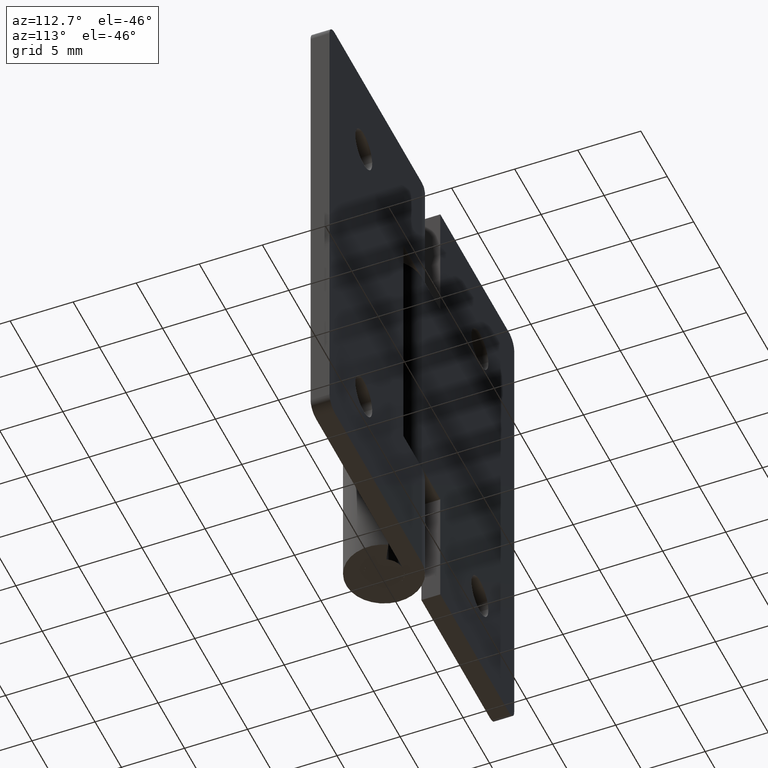
[diagram: clean part render]
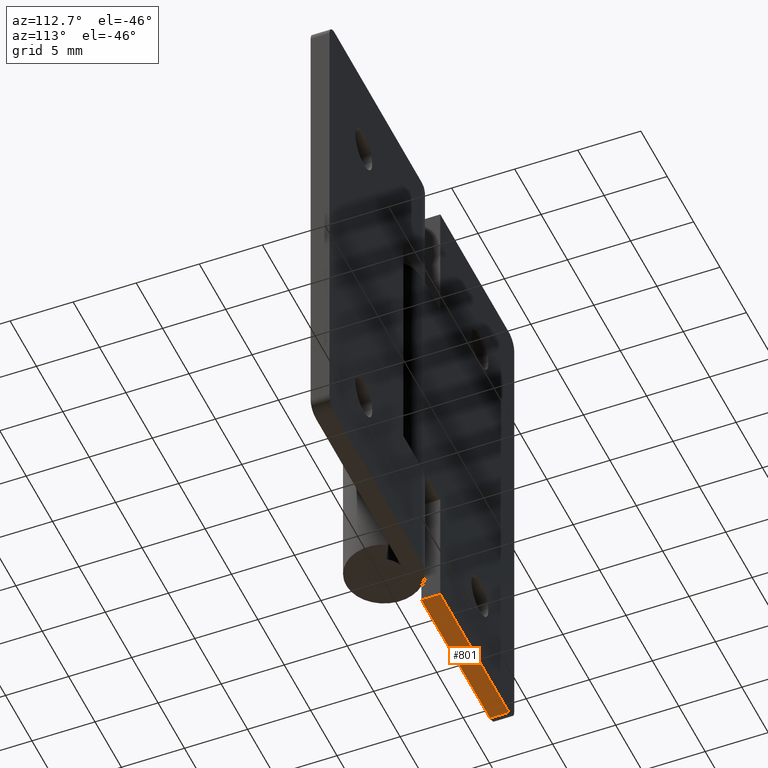
[diagram: same view with one face highlighted and labeled with its STEP entity id]
A machine part, auxiliary view. The second image highlights one B-rep face of the part: STEP entity #801.
In plain terms, the highlighted face is a freeform B-spline surface patch.
Its self-contained STEP definition (entity closure, byte-faithful):
#485=CARTESIAN_POINT('',(-16.500000000000000,1.500000000000000,0.0));
#486=VERTEX_POINT('',#485);
#507=CARTESIAN_POINT('',(-16.500000000000000,3.0,0.0));
#508=VERTEX_POINT('',#507);
#522=CARTESIAN_POINT('',(-16.500000000000000,1.500000000000000,0.0));
#523=CARTESIAN_POINT('',(-16.500000000000000,3.0,0.0));
#524=QUASI_UNIFORM_CURVE('',1,(#522,#523),.UNSPECIFIED.,.F.,.U.);
#525=EDGE_CURVE('',#486,#508,#524,.T.);
#613=CARTESIAN_POINT('',(-3.500000000000000,1.500000000000000,0.0));
#614=VERTEX_POINT('',#613);
#615=CARTESIAN_POINT('',(-3.500000000000000,3.0,0.0));
#616=VERTEX_POINT('',#615);
#617=CARTESIAN_POINT('',(-3.500000000000000,1.500000000000000,0.0));
#618=CARTESIAN_POINT('',(-3.500000000000000,3.0,0.0));
#619=QUASI_UNIFORM_CURVE('',1,(#617,#618),.UNSPECIFIED.,.F.,.U.);
#620=EDGE_CURVE('',#614,#616,#619,.T.);
#782=CARTESIAN_POINT('',(-17.149349974803481,1.425075002907291,0.0));
#783=CARTESIAN_POINT('',(-2.850649676509351,1.425075002907291,0.0));
#784=CARTESIAN_POINT('',(-17.149349974803481,3.074925037325845,0.0));
#785=CARTESIAN_POINT('',(-2.850649676509351,3.074925037325845,0.0));
#786=B_SPLINE_SURFACE_WITH_KNOTS('',1,1,((#782,#784),(#783,#785)),.UNSPECIFIED.,.F.,.F.,.U.,(2,2),(2,2),(0.0,14.298700298294129),(0.041708334948495,0.958291687403247),.UNSPECIFIED.);
#787=CARTESIAN_POINT('',(-3.500000000000000,1.500000000000000,0.0));
#788=CARTESIAN_POINT('',(-16.500000000000000,1.500000000000000,0.0));
#789=QUASI_UNIFORM_CURVE('',1,(#787,#788),.UNSPECIFIED.,.F.,.U.);
#790=EDGE_CURVE('',#614,#486,#789,.T.);
#791=ORIENTED_EDGE('',*,*,#790,.T.);
#792=ORIENTED_EDGE('',*,*,#525,.T.);
#793=CARTESIAN_POINT('',(-16.500000000000000,3.0,0.0));
#794=CARTESIAN_POINT('',(-3.500000000000000,3.0,0.0));
#795=QUASI_UNIFORM_CURVE('',1,(#793,#794),.UNSPECIFIED.,.F.,.U.);
#796=EDGE_CURVE('',#508,#616,#795,.T.);
#797=ORIENTED_EDGE('',*,*,#796,.T.);
#798=ORIENTED_EDGE('',*,*,#620,.F.);
#799=EDGE_LOOP('',(#791,#792,#797,#798));
#800=FACE_OUTER_BOUND('',#799,.T.);
#801=ADVANCED_FACE('',(#800),#786,.F.);